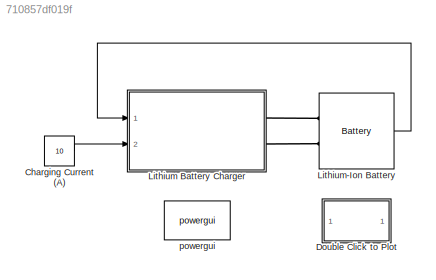
MODEL slx_710857df019f
KIND model
CONFIG AbsTol = auto
CONFIG EnableMultiTasking = off
CONFIG FixedStep = auto
CONFIG MaxStep = auto
CONFIG MinStep = auto
CONFIG RelTol = 1e-3
CONFIG SampleTimeConstraint = Unconstrained
CONFIG SolverName = ode1
CONFIG StartTime = 0.0
CONFIG StopTime = 7200
BLOCK [Constant] Charging Current (A)
  Value = 10
BLOCK [SubSystem] Double Click to Plot
  OpenFcn = LithiumBatteryChargingPlot
  Ports = []
  RequestExecContextInheritance = off
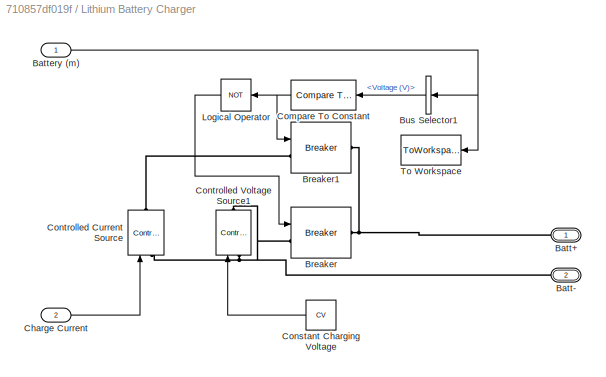
BLOCK [SubSystem] Lithium Battery Charger
  Ports = [2, 0, 0, 0, 0, 0, 2]
  RequestExecContextInheritance = off
BLOCK [PMIOPort] Lithium Battery Charger/Batt+
  Side = Right
BLOCK [PMIOPort] Lithium Battery Charger/Batt-
  Port = 2
  Side = Right
BLOCK [Inport] Lithium Battery Charger/Battery (m)
BLOCK [Reference] Lithium Battery Charger/Breaker  REF=spsBreakerLib/Breaker
  Ports = [1, 0, 0, 0, 0, 1, 1]
  SourceBlock = spsBreakerLib/Breaker
  SourceProductBaseCode = PS
  SourceType = Breaker
BLOCK [Reference] Lithium Battery Charger/Breaker1  REF=spsBreakerLib/Breaker
  Ports = [1, 0, 0, 0, 0, 1, 1]
  SourceBlock = spsBreakerLib/Breaker
  SourceProductBaseCode = PS
  SourceType = Breaker
BLOCK [BusSelector] Lithium Battery Charger/Bus Selector1
  OutputSignals = Voltage (V)
  Ports = [1, 1]
BLOCK [Inport] Lithium Battery Charger/Charge Current
  Port = 2
BLOCK [Reference] Lithium Battery Charger/Compare To Constant  REF=simulink/Logic and Bit
Operations/Compare
To Constant
  NameLocation = top
  Ports = [1, 1]
  SourceBlock = simulink/Logic and Bit\nOperations/Compare\nTo Constant
  SourceProductBaseCode = SL
  SourceType = Compare To Constant
BLOCK [Constant] Lithium Battery Charger/Constant Charging Voltage
  Value = CV
BLOCK [Reference] Lithium Battery Charger/Controlled Current Source  REF=spsControlledCurrentSourceLib/Controlled Current Source
  NameLocation = right
  Ports = [1, 0, 0, 0, 0, 1, 1]
  SourceBlock = spsControlledCurrentSourceLib/Controlled Current Source
  SourceProductBaseCode = PS
  SourceType = Controlled Current Source
BLOCK [Reference] Lithium Battery Charger/Controlled Voltage Source1  REF=spsControlledVoltageSourceLib/Controlled Voltage Source
  NameLocation = right
  Ports = [1, 0, 0, 0, 0, 1, 1]
  SourceBlock = spsControlledVoltageSourceLib/Controlled Voltage Source
  SourceProductBaseCode = PS
  SourceType = Controlled Voltage Source
BLOCK [Logic] Lithium Battery Charger/Logical Operator
  AllPortsSameDT = off
  Operator = NOT
  OutDataTypeStr = boolean
  Ports = [1, 1]
BLOCK [ToWorkspace] Lithium Battery Charger/To Workspace
  FixptAsFi = on
  MaxDataPoints = inf
  Ports = [1]
  SampleTime = -1
  VariableName = simout
BLOCK [Reference] Lithium-Ion Battery  REF=spsBatteryLib/Battery
  Ports = [0, 1, 0, 0, 0, 2]
  SourceBlock = spsBatteryLib/Battery
  SourceProductBaseCode = PS
  SourceType = Battery
BLOCK [Reference] powergui  REF=spspowerguiLib/powergui
  Ports = []
  Priority = 1
  SourceBlock = spspowerguiLib/powergui
  SourceProductBaseCode = PS
  SourceType = PSB option menu block
LINE Charging Current (A):1 -> Lithium Battery Charger:2
NET Lithium Battery Charger/Battery (m):1 -> Lithium Battery Charger/Bus Selector1:1, Lithium Battery Charger/To Workspace:1
LINE Lithium Battery Charger/Bus Selector1:1 -> Lithium Battery Charger/Compare To Constant:1
LINE Lithium Battery Charger/Charge Current:1 -> Lithium Battery Charger/Controlled Current Source:1
NET Lithium Battery Charger/Compare To Constant:1 -> Lithium Battery Charger/Breaker1:1, Lithium Battery Charger/Logical Operator:1
LINE Lithium Battery Charger/Constant Charging Voltage:1 -> Lithium Battery Charger/Controlled Voltage Source1:1
LINE Lithium Battery Charger/Logical Operator:1 -> Lithium Battery Charger/Breaker:1
LINE Lithium-Ion Battery:1 -> Lithium Battery Charger:1
PNET net1: Lithium Battery Charger/Batt+:RConn1 -- Lithium Battery Charger/Breaker1:RConn1 -- Lithium Battery Charger/Breaker:RConn1
PNET net2: Lithium Battery Charger/Batt-:RConn1 -- Lithium Battery Charger/Controlled Current Source:LConn1 -- Lithium Battery Charger/Controlled Voltage Source1:LConn1
PLINE Lithium Battery Charger/Breaker1:LConn1 -- Lithium Battery Charger/Controlled Current Source:RConn1
PLINE Lithium Battery Charger/Breaker:LConn1 -- Lithium Battery Charger/Controlled Voltage Source1:RConn1
PLINE Lithium Battery Charger:RConn1 -- Lithium-Ion Battery:LConn1
PLINE Lithium Battery Charger:RConn2 -- Lithium-Ion Battery:LConn2
note: NET lines group one-source signal fan-out (src -> all destinations, sorted); 1:1 wires keep LINE; PNET lines group multi-terminal physical nets as a canonical sorted terminal list (undirected conserving connections); 2-terminal nets keep the pairwise PLINE form
